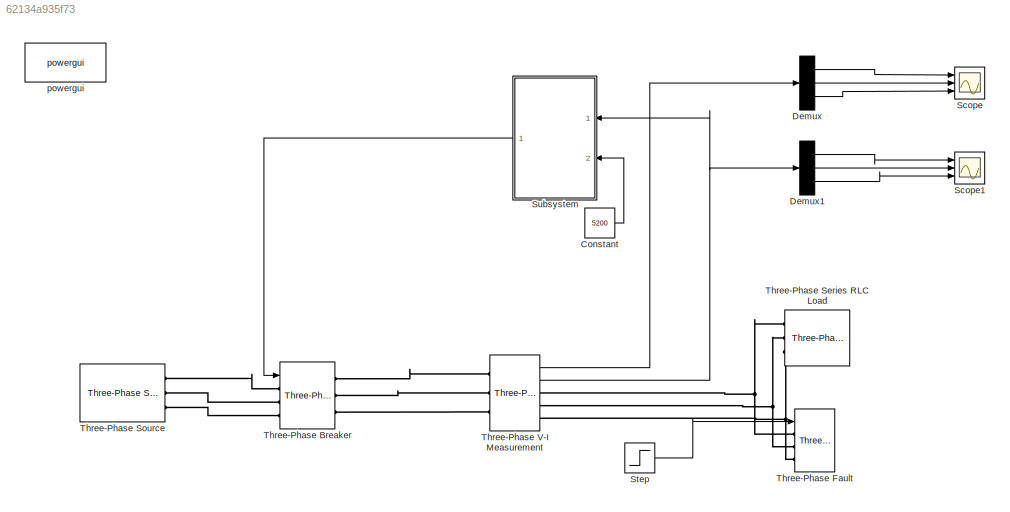
MODEL slx_62134a935f73
KIND model
CONFIG AbsTol = auto
CONFIG EnableMultiTasking = off
CONFIG FixedStep = auto
CONFIG MaxStep = auto
CONFIG MinStep = auto
CONFIG RelTol = 1e-3
CONFIG SampleTimeConstraint = Unconstrained
CONFIG Solver = VariableStepAuto
CONFIG SolverName = VariableStepAuto
CONFIG StartTime = 0.0
CONFIG StopTime = 0.3
BLOCK [Constant] Constant
  OutDataTypeStr = boolean
  Value = 5200
BLOCK [Demux] Demux
  DisplayOption = bar
  Outputs = 3
  Ports = [1, 3]
BLOCK [Demux] Demux1
  DisplayOption = bar
  Outputs = 3
  Ports = [1, 3]
BLOCK [Scope] Scope
  Floating = off
  NumInputPorts = 3
  Ports = [3]
  ScopeSpecificationString = Simulink.scopes.TimeScopeBlockCfg('CurrentConfiguration', extmgr.ConfigurationSet(extmgr.Configuration('Core','General UI',true),extmgr.Configuration('Core','Source UI',true),extmgr.Configuration('Sources','WiredSimulink',true),extmgr.Configuration('Visuals','Time Domain',true,'SerializedDisplays',{struct('MinYLimReal','-149488894.34378','MaxYLimReal','16609877.14931','YLabelReal','','MinYLimMag',...<+2667ch>
BLOCK [Scope] Scope1
  Floating = off
  NumInputPorts = 3
  Ports = [3]
  ScopeSpecificationString = Simulink.scopes.TimeScopeBlockCfg('CurrentConfiguration', extmgr.ConfigurationSet(extmgr.Configuration('Core','General UI',true),extmgr.Configuration('Core','Source UI',true),extmgr.Configuration('Sources','WiredSimulink',true,'DataLoggingVariableName','ScopeData1'),extmgr.Configuration('Visuals','Time Domain',true,'SerializedDisplays',{struct('MinYLimReal','-55341530419.68745','MaxYLimReal','3916...<+1622ch>
BLOCK [Step] Step
  After = 0
  Before = 1
  SampleTime = 0
  Time = 0.16
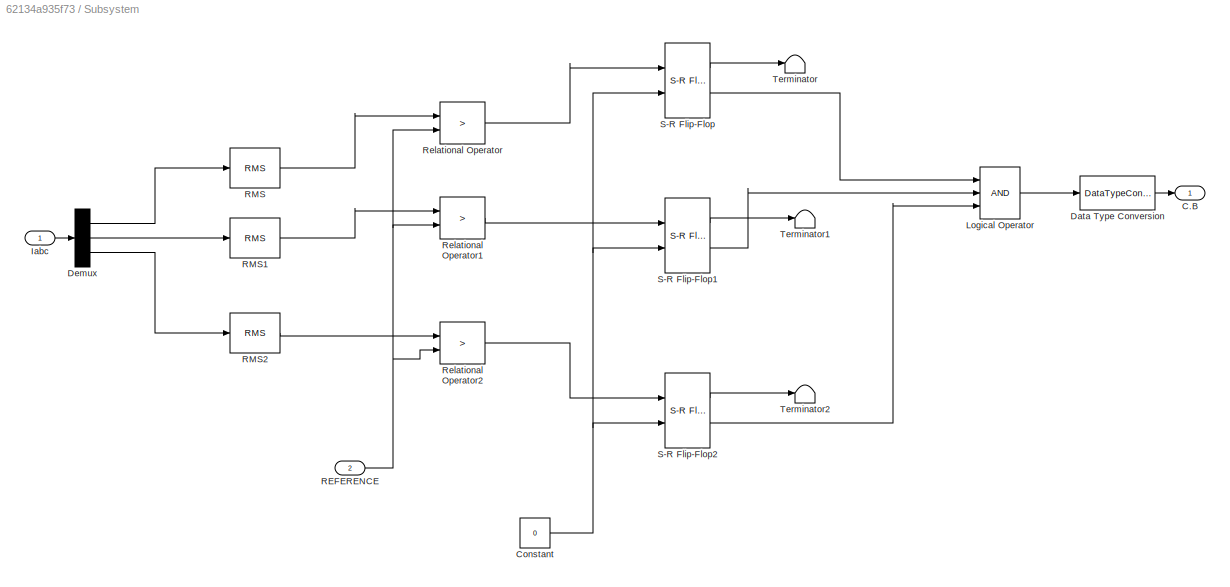
BLOCK [SubSystem] Subsystem
  Ports = [2, 1]
  RequestExecContextInheritance = off
BLOCK [Outport] Subsystem/C.B
  IconDisplay = Port number
BLOCK [Constant] Subsystem/Constant
  OutDataTypeStr = boolean
  Value = 0
BLOCK [DataTypeConversion] Subsystem/Data Type Conversion
  OutDataTypeStr = double
  RndMeth = Floor
  SaturateOnIntegerOverflow = off
BLOCK [Demux] Subsystem/Demux
  DisplayOption = bar
  Outputs = 3
  Ports = [1, 3]
BLOCK [Inport] Subsystem/Iabc
  IconDisplay = Port number
BLOCK [Logic] Subsystem/Logical Operator
  AllPortsSameDT = off
  Inputs = 3
  OutDataTypeStr = boolean
  Ports = [3, 1]
BLOCK [Inport] Subsystem/REFERENCE 
  IconDisplay = Port number
  OutDataTypeStr = boolean
  Port = 2
BLOCK [Reference] Subsystem/RMS  REF=powerlib_meascontrol/Measurements/RMS
  Ports = [1, 1]
  SourceBlock = powerlib_meascontrol/Measurements/RMS
  SourceProductBaseCode = PS
  SourceProductName = Simscape Power Systems
  SourceType = RMS
BLOCK [Reference] Subsystem/RMS1  REF=powerlib_meascontrol/Measurements/RMS
  Ports = [1, 1]
  SourceBlock = powerlib_meascontrol/Measurements/RMS
  SourceProductBaseCode = PS
  SourceProductName = Simscape Power Systems
  SourceType = RMS
BLOCK [Reference] Subsystem/RMS2  REF=powerlib_meascontrol/Measurements/RMS
  Ports = [1, 1]
  SourceBlock = powerlib_meascontrol/Measurements/RMS
  SourceProductBaseCode = PS
  SourceProductName = Simscape Power Systems
  SourceType = RMS
BLOCK [RelationalOperator] Subsystem/Relational Operator
  InputSameDT = off
  Operator = >
  OutDataTypeStr = boolean
  Ports = [2, 1]
  RndMeth = Simplest
BLOCK [RelationalOperator] Subsystem/Relational Operator1
  InputSameDT = off
  Operator = >
  OutDataTypeStr = boolean
  Ports = [2, 1]
  RndMeth = Simplest
BLOCK [RelationalOperator] Subsystem/Relational Operator2
  InputSameDT = off
  Operator = >
  OutDataTypeStr = boolean
  Ports = [2, 1]
  RndMeth = Simplest
BLOCK [Reference] Subsystem/S-R Flip-Flop  REF=simulink_extras/Flip Flops/S-R
Flip-Flop
  Ports = [2, 2]
  SourceBlock = simulink_extras/Flip Flops/S-R\nFlip-Flop
  SourceProductBaseCode = SL
  SourceProductName = Simulink
  SourceType = SRFlipFlop
BLOCK [Reference] Subsystem/S-R Flip-Flop1  REF=simulink_extras/Flip Flops/S-R
Flip-Flop
  Ports = [2, 2]
  SourceBlock = simulink_extras/Flip Flops/S-R\nFlip-Flop
  SourceProductBaseCode = SL
  SourceProductName = Simulink
  SourceType = SRFlipFlop
BLOCK [Reference] Subsystem/S-R Flip-Flop2  REF=simulink_extras/Flip Flops/S-R
Flip-Flop
  Ports = [2, 2]
  SourceBlock = simulink_extras/Flip Flops/S-R\nFlip-Flop
  SourceProductBaseCode = SL
  SourceProductName = Simulink
  SourceType = SRFlipFlop
BLOCK [Terminator] Subsystem/Terminator
BLOCK [Terminator] Subsystem/Terminator1
BLOCK [Terminator] Subsystem/Terminator2
BLOCK [Reference] Three-Phase Breaker  REF=powerlib/Elements/Three-Phase Breaker
  Ports = [1, 0, 0, 0, 0, 3, 3]
  SourceBlock = powerlib/Elements/Three-Phase Breaker
  SourceProductBaseCode = PS
  SourceProductName = Simscape Power Systems
  SourceType = Three-Phase Breaker
BLOCK [Reference] Three-Phase Fault  REF=powerlib/Elements/Three-Phase Fault
  Ports = [1, 0, 0, 0, 0, 3]
  SourceBlock = powerlib/Elements/Three-Phase Fault
  SourceProductBaseCode = PS
  SourceProductName = Simscape Power Systems
  SourceType = Three-Phase Fault
BLOCK [Reference] Three-Phase Series RLC Load  REF=powerlib/Elements/Three-Phase
Series RLC Load
  AttributesFormatString = \n
  Ports = [0, 0, 0, 0, 0, 3]
  SourceBlock = powerlib/Elements/Three-Phase\nSeries RLC Load
  SourceProductBaseCode = PS
  SourceProductName = Simscape Power Systems
  SourceType = Three-Phase Series RLC Load
BLOCK [Reference] Three-Phase Source  REF=powerlib/Electrical
Sources/Three-Phase Source
  Ports = [0, 0, 0, 0, 0, 0, 3]
  SourceBlock = powerlib/Electrical\nSources/Three-Phase Source
  SourceProductBaseCode = PS
  SourceProductName = Simscape Power Systems
  SourceType = Three-Phase Source
BLOCK [Reference] Three-Phase V-I Measurement  REF=powerlib/Measurements/Three-Phase
V-I Measurement
  Ports = [0, 2, 0, 0, 0, 3, 3]
  SourceBlock = powerlib/Measurements/Three-Phase\nV-I Measurement
  SourceProductBaseCode = PS
  SourceProductName = Simscape Power Systems
  SourceType = Three-Phase VI Measurement
BLOCK [Reference] powergui  REF=powerlib/powergui
  Ports = []
  Priority = 1
  SourceBlock = powerlib/powergui
  SourceProductBaseCode = PS
  SourceProductName = Simscape Power Systems
  SourceType = PSB option menu block
LINE Constant:1 -> Subsystem:2
LINE Demux1:1 -> Scope1:1
LINE Demux1:2 -> Scope1:2
LINE Demux1:3 -> Scope1:3
LINE Demux:1 -> Scope:1
LINE Demux:2 -> Scope:2
LINE Demux:3 -> Scope:3
LINE Step:1 -> Three-Phase Fault:1
NET Subsystem/Constant:1 -> Subsystem/S-R Flip-Flop1:2, Subsystem/S-R Flip-Flop2:2, Subsystem/S-R Flip-Flop:2
LINE Subsystem/Data Type Conversion:1 -> Subsystem/C.B:1
LINE Subsystem/Demux:1 -> Subsystem/RMS:1
LINE Subsystem/Demux:2 -> Subsystem/RMS1:1
LINE Subsystem/Demux:3 -> Subsystem/RMS2:1
LINE Subsystem/Iabc:1 -> Subsystem/Demux:1
LINE Subsystem/Logical Operator:1 -> Subsystem/Data Type Conversion:1
NET Subsystem/REFERENCE :1 -> Subsystem/Relational Operator1:2, Subsystem/Relational Operator2:2, Subsystem/Relational Operator:2
LINE Subsystem/RMS1:1 -> Subsystem/Relational Operator1:1
LINE Subsystem/RMS2:1 -> Subsystem/Relational Operator2:1
LINE Subsystem/RMS:1 -> Subsystem/Relational Operator:1
LINE Subsystem/Relational Operator1:1 -> Subsystem/S-R Flip-Flop1:1
LINE Subsystem/Relational Operator2:1 -> Subsystem/S-R Flip-Flop2:1
LINE Subsystem/Relational Operator:1 -> Subsystem/S-R Flip-Flop:1
LINE Subsystem/S-R Flip-Flop1:1 -> Subsystem/Terminator1:1
LINE Subsystem/S-R Flip-Flop1:2 -> Subsystem/Logical Operator:2
LINE Subsystem/S-R Flip-Flop2:1 -> Subsystem/Terminator2:1
LINE Subsystem/S-R Flip-Flop2:2 -> Subsystem/Logical Operator:3
LINE Subsystem/S-R Flip-Flop:1 -> Subsystem/Terminator:1
LINE Subsystem/S-R Flip-Flop:2 -> Subsystem/Logical Operator:1
LINE Subsystem:1 -> Three-Phase Breaker:1
LINE Three-Phase V-I Measurement:1 -> Demux:1
NET Three-Phase V-I Measurement:2 -> Demux1:1, Subsystem:1
PLINE Three-Phase Breaker:LConn1 -- Three-Phase Source:RConn1
PLINE Three-Phase Breaker:LConn2 -- Three-Phase Source:RConn2
PLINE Three-Phase Breaker:LConn3 -- Three-Phase Source:RConn3
PLINE Three-Phase Breaker:RConn1 -- Three-Phase V-I Measurement:LConn1
PLINE Three-Phase Breaker:RConn2 -- Three-Phase V-I Measurement:LConn2
PLINE Three-Phase Breaker:RConn3 -- Three-Phase V-I Measurement:LConn3
PNET net1: Three-Phase Fault:LConn1 -- Three-Phase Series RLC Load:LConn1 -- Three-Phase V-I Measurement:RConn1
PNET net2: Three-Phase Fault:LConn2 -- Three-Phase Series RLC Load:LConn2 -- Three-Phase V-I Measurement:RConn2
PNET net3: Three-Phase Fault:LConn3 -- Three-Phase Series RLC Load:LConn3 -- Three-Phase V-I Measurement:RConn3
note: NET lines group one-source signal fan-out (src -> all destinations, sorted); 1:1 wires keep LINE; PNET lines group multi-terminal physical nets as a canonical sorted terminal list (undirected conserving connections); 2-terminal nets keep the pairwise PLINE form
